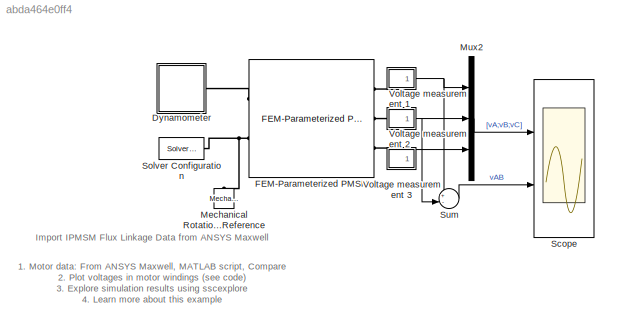
MODEL slx_abda464e0ff4
KIND model
CONFIG AbsTol = 1e-3
CONFIG EnableMultiTasking = off
CONFIG FixedStep = auto
CONFIG MaxStep = auto
CONFIG MinStep = auto
CONFIG PreLoadFcn = % Load flux linkage data\nee_ece_table\nRPM = 500;\nRload = 1e6;
CONFIG RelTol = 1e-3
CONFIG SampleTimeConstraint = Unconstrained
CONFIG SolverName = VariableStepAuto
CONFIG StartTime = 0.0
CONFIG StopFcn = ee_addSimlogTimeStamp(bdroot)
CONFIG StopTime = 0.01
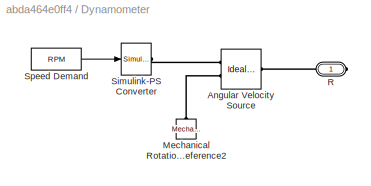
BLOCK [SubSystem] Dynamometer
  Ports = [0, 0, 0, 0, 0, 0, 1]
  RequestExecContextInheritance = off
BLOCK [Reference] Dynamometer/Angular Velocity Source  REF=fl_lib/Mechanical/Mechanical Sources/Ideal Angular
Velocity Source
  Ports = [0, 0, 0, 0, 0, 1, 2]
  SourceBlock = fl_lib/Mechanical/Mechanical Sources/Ideal Angular\nVelocity Source
  SourceProductBaseCode = SS
  SourceType = Ideal Angular\nVelocity Source
BLOCK [Reference] Dynamometer/Mechanical Rotational Reference2  REF=fl_lib/Mechanical/Rotational Elements/Mechanical
Rotational Reference
  NameLocation = right
  Ports = [0, 0, 0, 0, 0, 1]
  SourceBlock = fl_lib/Mechanical/Rotational Elements/Mechanical\nRotational Reference
  SourceProductBaseCode = SS
  SourceType = Mechanical\nRotational Reference
BLOCK [PMIOPort] Dynamometer/R
  Side = Right
BLOCK [Reference] Dynamometer/Simulink-PS Converter  REF=nesl_utility/Simulink-PS
Converter
  NameLocation = top
  Ports = [1, 0, 0, 0, 0, 0, 1]
  SourceBlock = nesl_utility/Simulink-PS\nConverter
  SourceProductBaseCode = PW,SS
  SourceType = Simulink-PS\nConverter
BLOCK [Constant] Dynamometer/Speed Demand
  Value = RPM
BLOCK [Reference] FEM-Parameterized PMSM  REF=ee_lib/Electromechanical/Permanent Magnet/FEM-Parameterized
PMSM
  Ports = [0, 0, 0, 0, 0, 3, 2]
  SourceBlock = ee_lib/Electromechanical/Permanent Magnet/FEM-Parameterized\nPMSM
  SourceProductBaseCode = PS
  SourceType = FEM-Parameterized\nPMSM
BLOCK [Reference] Mechanical Rotational Reference  REF=fl_lib/Mechanical/Rotational Elements/Mechanical
Rotational Reference
  NameLocation = right
  Ports = [0, 0, 0, 0, 0, 1]
  SourceBlock = fl_lib/Mechanical/Rotational Elements/Mechanical\nRotational Reference
  SourceProductBaseCode = SS
  SourceType = Mechanical\nRotational Reference
BLOCK [Mux] Mux2
  DisplayOption = bar
  Inputs = 3
  Ports = [3, 1]
BLOCK [Scope] Scope
  Floating = off
  NumInputPorts = 2
  Ports = [2]
  ScopeSpecificationString = Simulink.scopes.TimeScopeBlockCfg('CurrentConfiguration', extmgr.ConfigurationSet(extmgr.Configuration('Core','General UI',true),extmgr.Configuration('Core','Source UI',true),extmgr.Configuration('Sources','WiredSimulink',true),extmgr.Configuration('Visuals','Time Domain',true,'SerializedDisplays',{struct('MinYLimReal','-590.52042','MaxYLimReal','590.54496','YLabelReal','','MinYLimMag',' 0.00000',...<+2045ch>
BLOCK [Reference] Solver Configuration  REF=nesl_utility/Solver
Configuration
  NameLocation = top
  Ports = [0, 0, 0, 0, 0, 0, 1]
  SourceBlock = nesl_utility/Solver\nConfiguration
  SourceProductBaseCode = PW,SS
  SourceType = Solver\nConfiguration
BLOCK [Sum] Sum
  Inputs = +-|
  Ports = [2, 1]
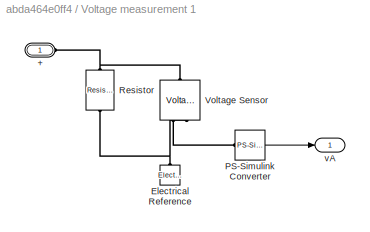
BLOCK [SubSystem] Voltage measurement 1
  NameLocation = top
  Ports = [0, 1, 0, 0, 0, 1]
  RequestExecContextInheritance = off
BLOCK [PMIOPort] Voltage measurement 1/+
  Side = Left
BLOCK [Reference] Voltage measurement 1/Electrical Reference  REF=fl_lib/Electrical/Electrical Elements/Electrical Reference
  NameLocation = right
  Ports = [0, 0, 0, 0, 0, 1]
  SourceBlock = fl_lib/Electrical/Electrical Elements/Electrical Reference
  SourceProductBaseCode = SS
  SourceType = Electrical Reference
BLOCK [Reference] Voltage measurement 1/PS-Simulink Converter  REF=nesl_utility/PS-Simulink
Converter
  Ports = [0, 1, 0, 0, 0, 1]
  SourceBlock = nesl_utility/PS-Simulink\nConverter
  SourceProductBaseCode = PW,SS
  SourceType = PS-Simulink\nConverter
BLOCK [Reference] Voltage measurement 1/Resistor  REF=fl_lib/Electrical/Electrical Elements/Resistor
  NameLocation = left
  Ports = [0, 0, 0, 0, 0, 1, 1]
  SourceBlock = fl_lib/Electrical/Electrical Elements/Resistor
  SourceProductBaseCode = SS
  SourceType = Resistor
BLOCK [Reference] Voltage measurement 1/Voltage Sensor  REF=fl_lib/Electrical/Electrical Sensors/Voltage Sensor
  NameLocation = left
  Ports = [0, 0, 0, 0, 0, 1, 2]
  SourceBlock = fl_lib/Electrical/Electrical Sensors/Voltage Sensor
  SourceProductBaseCode = SS
  SourceType = Voltage Sensor
BLOCK [Outport] Voltage measurement 1/vA
  VectorParamsAs1DForOutWhenUnconnected = off
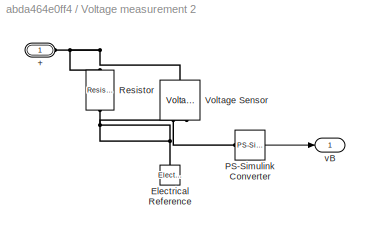
BLOCK [SubSystem] Voltage measurement 2
  NameLocation = top
  Ports = [0, 1, 0, 0, 0, 1]
  RequestExecContextInheritance = off
BLOCK [PMIOPort] Voltage measurement 2/+
  Side = Left
BLOCK [Reference] Voltage measurement 2/Electrical Reference  REF=fl_lib/Electrical/Electrical Elements/Electrical Reference
  NameLocation = right
  Ports = [0, 0, 0, 0, 0, 1]
  SourceBlock = fl_lib/Electrical/Electrical Elements/Electrical Reference
  SourceProductBaseCode = SS
  SourceType = Electrical Reference
BLOCK [Reference] Voltage measurement 2/PS-Simulink Converter  REF=nesl_utility/PS-Simulink
Converter
  Ports = [0, 1, 0, 0, 0, 1]
  SourceBlock = nesl_utility/PS-Simulink\nConverter
  SourceProductBaseCode = PW,SS
  SourceType = PS-Simulink\nConverter
BLOCK [Reference] Voltage measurement 2/Resistor  REF=fl_lib/Electrical/Electrical Elements/Resistor
  NameLocation = left
  Ports = [0, 0, 0, 0, 0, 1, 1]
  SourceBlock = fl_lib/Electrical/Electrical Elements/Resistor
  SourceProductBaseCode = SS
  SourceType = Resistor
BLOCK [Reference] Voltage measurement 2/Voltage Sensor  REF=fl_lib/Electrical/Electrical Sensors/Voltage Sensor
  NameLocation = left
  Ports = [0, 0, 0, 0, 0, 1, 2]
  SourceBlock = fl_lib/Electrical/Electrical Sensors/Voltage Sensor
  SourceProductBaseCode = SS
  SourceType = Voltage Sensor
BLOCK [Outport] Voltage measurement 2/vB
  VectorParamsAs1DForOutWhenUnconnected = off
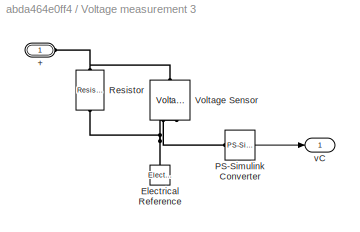
BLOCK [SubSystem] Voltage measurement 3
  NameLocation = top
  Ports = [0, 1, 0, 0, 0, 1]
  RequestExecContextInheritance = off
BLOCK [PMIOPort] Voltage measurement 3/+
  Side = Left
BLOCK [Reference] Voltage measurement 3/Electrical Reference  REF=fl_lib/Electrical/Electrical Elements/Electrical Reference
  NameLocation = right
  Ports = [0, 0, 0, 0, 0, 1]
  SourceBlock = fl_lib/Electrical/Electrical Elements/Electrical Reference
  SourceProductBaseCode = SS
  SourceType = Electrical Reference
BLOCK [Reference] Voltage measurement 3/PS-Simulink Converter  REF=nesl_utility/PS-Simulink
Converter
  Ports = [0, 1, 0, 0, 0, 1]
  SourceBlock = nesl_utility/PS-Simulink\nConverter
  SourceProductBaseCode = PW,SS
  SourceType = PS-Simulink\nConverter
BLOCK [Reference] Voltage measurement 3/Resistor  REF=fl_lib/Electrical/Electrical Elements/Resistor
  NameLocation = left
  Ports = [0, 0, 0, 0, 0, 1, 1]
  SourceBlock = fl_lib/Electrical/Electrical Elements/Resistor
  SourceProductBaseCode = SS
  SourceType = Resistor
BLOCK [Reference] Voltage measurement 3/Voltage Sensor  REF=fl_lib/Electrical/Electrical Sensors/Voltage Sensor
  NameLocation = left
  Ports = [0, 0, 0, 0, 0, 1, 2]
  SourceBlock = fl_lib/Electrical/Electrical Sensors/Voltage Sensor
  SourceProductBaseCode = SS
  SourceType = Voltage Sensor
BLOCK [Outport] Voltage measurement 3/vC
  VectorParamsAs1DForOutWhenUnconnected = off
ANNOTATION (root): 1. Motor data: From ANSYS Maxwell , MATLAB script , Compare 2. Plot voltages in motor windings ( see code ) 3. Explore simulation results using sscexplore 4. Learn more about this example
ANNOTATION (root): Import IPMSM Flux Linkage Data from ANSYS Maxwell
LINE Dynamometer/Speed Demand:1 -> Dynamometer/Simulink-PS Converter:1
LINE Mux2:1 -> Scope:1
LINE Sum:1 -> Scope:2
LINE Voltage measurement 1/PS-Simulink Converter:1 -> Voltage measurement 1/vA:1
NET Voltage measurement 1:1 -> Mux2:1, Sum:1
LINE Voltage measurement 2/PS-Simulink Converter:1 -> Voltage measurement 2/vB:1
NET Voltage measurement 2:1 -> Mux2:2, Sum:2
LINE Voltage measurement 3/PS-Simulink Converter:1 -> Voltage measurement 3/vC:1
LINE Voltage measurement 3:1 -> Mux2:3
PLINE Dynamometer/Angular Velocity Source:LConn1 -- Dynamometer/R:RConn1
PLINE Dynamometer/Angular Velocity Source:RConn1 -- Dynamometer/Simulink-PS Converter:RConn1
PLINE Dynamometer/Angular Velocity Source:RConn2 -- Dynamometer/Mechanical Rotational Reference2:LConn1
PLINE Dynamometer:RConn1 -- FEM-Parameterized PMSM:RConn1
PLINE FEM-Parameterized PMSM:LConn1 -- Voltage measurement 1:LConn1
PLINE FEM-Parameterized PMSM:LConn2 -- Voltage measurement 2:LConn1
PLINE FEM-Parameterized PMSM:LConn3 -- Voltage measurement 3:LConn1
PNET net1: FEM-Parameterized PMSM:RConn2 -- Mechanical Rotational Reference:LConn1 -- Solver Configuration:RConn1
PNET net2: Voltage measurement 1/+:RConn1 -- Voltage measurement 1/Resistor:LConn1 -- Voltage measurement 1/Voltage Sensor:LConn1
PNET net3: Voltage measurement 1/Electrical Reference:LConn1 -- Voltage measurement 1/Resistor:RConn1 -- Voltage measurement 1/Voltage Sensor:RConn2
PLINE Voltage measurement 1/PS-Simulink Converter:LConn1 -- Voltage measurement 1/Voltage Sensor:RConn1
PNET net4: Voltage measurement 2/+:RConn1 -- Voltage measurement 2/Resistor:LConn1 -- Voltage measurement 2/Voltage Sensor:LConn1
PNET net5: Voltage measurement 2/Electrical Reference:LConn1 -- Voltage measurement 2/Resistor:RConn1 -- Voltage measurement 2/Voltage Sensor:RConn2
PLINE Voltage measurement 2/PS-Simulink Converter:LConn1 -- Voltage measurement 2/Voltage Sensor:RConn1
PNET net6: Voltage measurement 3/+:RConn1 -- Voltage measurement 3/Resistor:LConn1 -- Voltage measurement 3/Voltage Sensor:LConn1
PNET net7: Voltage measurement 3/Electrical Reference:LConn1 -- Voltage measurement 3/Resistor:RConn1 -- Voltage measurement 3/Voltage Sensor:RConn2
PLINE Voltage measurement 3/PS-Simulink Converter:LConn1 -- Voltage measurement 3/Voltage Sensor:RConn1
note: NET lines group one-source signal fan-out (src -> all destinations, sorted); 1:1 wires keep LINE; PNET lines group multi-terminal physical nets as a canonical sorted terminal list (undirected conserving connections); 2-terminal nets keep the pairwise PLINE form
